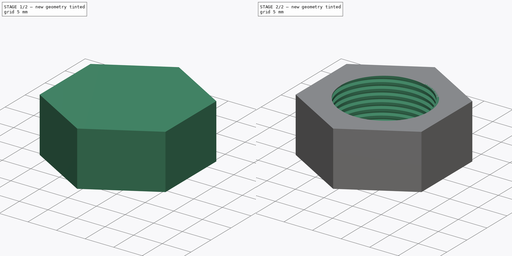
[diagram: build sequence overview — one tinted view per stage of 2, left to right]
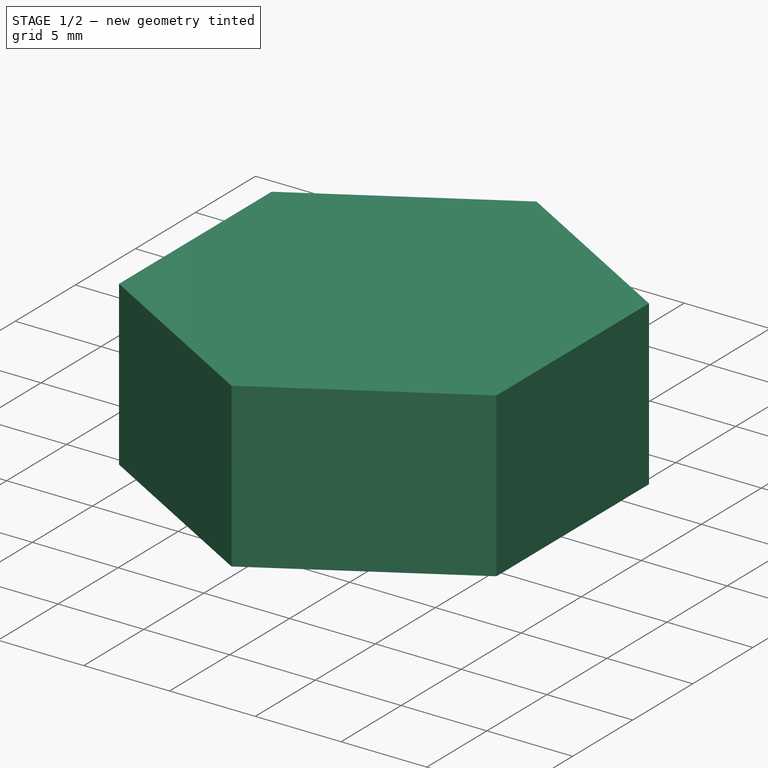
[diagram: stage 1 of 2 — iso view after this stage's code; geometry added in this stage tinted green]
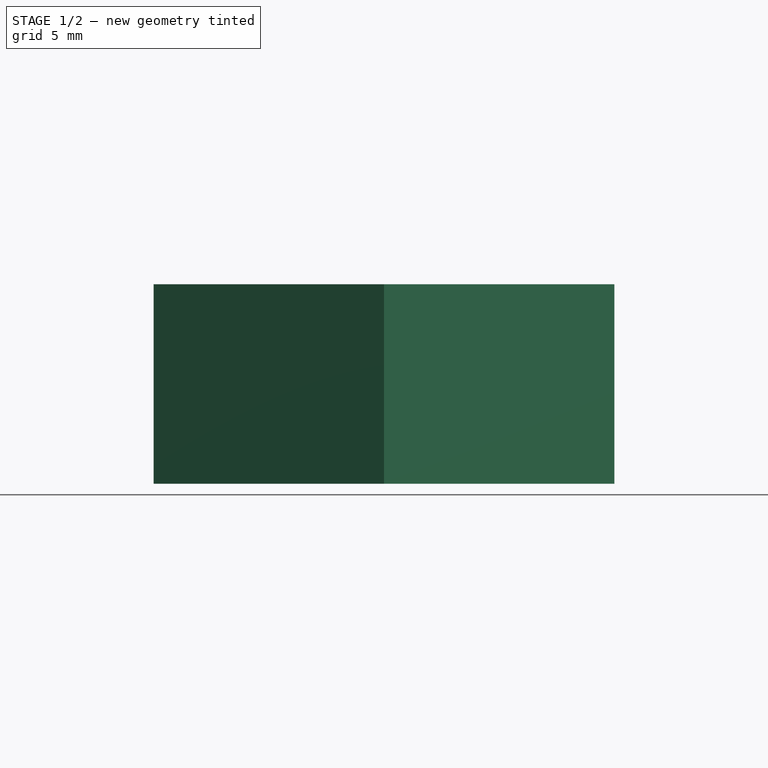
[diagram: stage 1 of 2 — front view after this stage's code; geometry added in this stage tinted green]
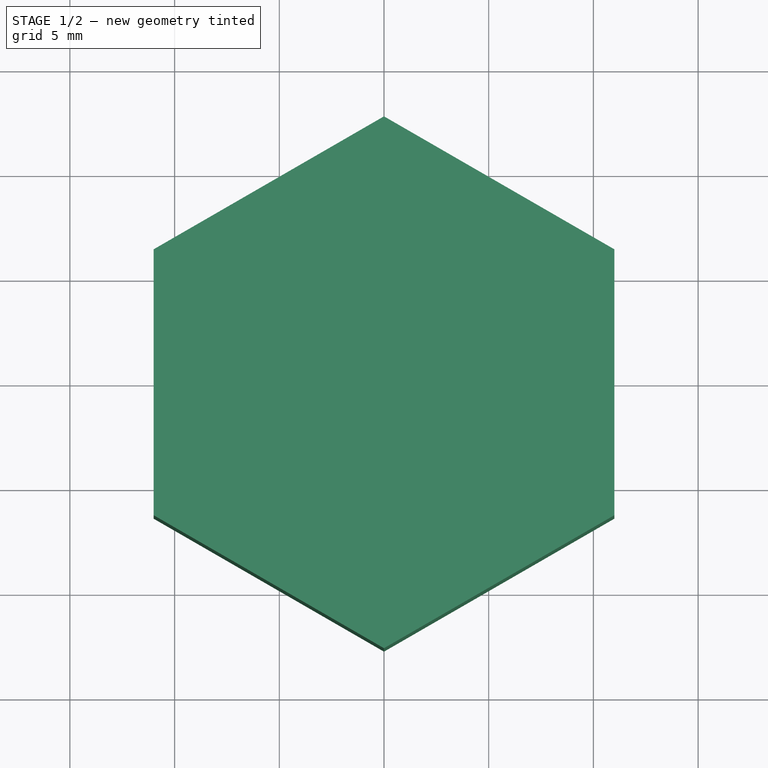
[diagram: stage 1 of 2 — top view after this stage's code; geometry added in this stage tinted green]
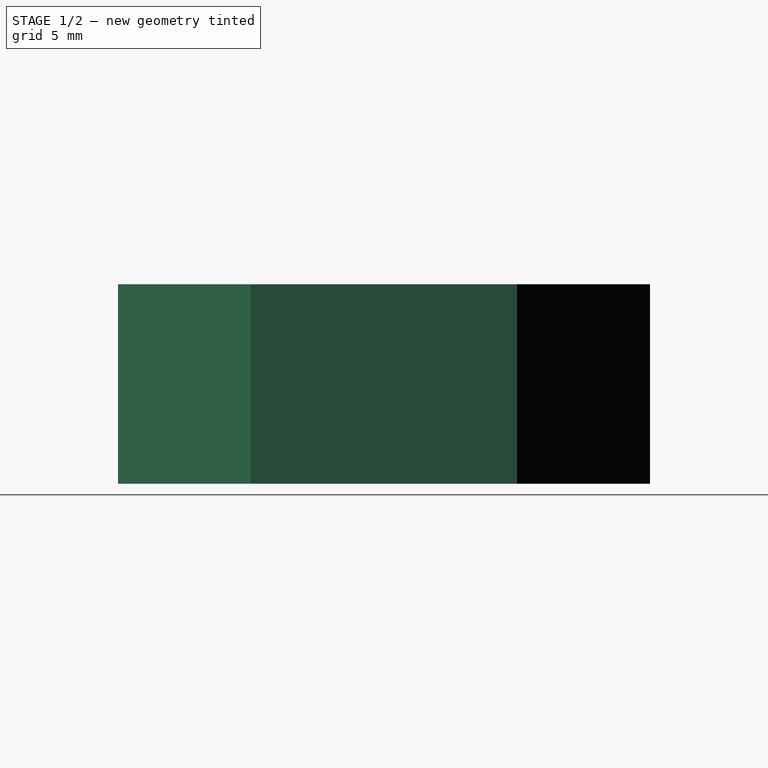
[diagram: stage 1 of 2 — right view after this stage's code; geometry added in this stage tinted green]
FCSTD DOCUMENT  (FreeCAD 1.1R40006 (Git))
Label: nut
License: All rights reserved
LicenseURL: https://en.wikipedia.org/wiki/All_rights_reserved
objects: App::Point×1, Sketcher::SketchObject×1, PartDesign::Pad×1, PartDesign::Hole×1, PartDesign::Body×1, Spreadsheet::Sheet×1
note: 9 computed .brp shape members not serialized (recipe doc carries the construction recipe); baked Part::Feature solids carry a one-line shape summary decoded from their .brp

FEATURE [App::Point] Origin001
  Role = Origin
FEATURE [Sketcher::SketchObject] Sketch  label="NutSketch"
  ArcFitTolerance = 1e-06
  AttachmentOffset = pos=(0,0,-7.9) rot=(0,0,1;0rad)
  AttachmentSupport = -> [XY_Plane]
  ExternalTypes = [0]
  FullyConstrained = true
  MakeInternals = false
  MapMode = 5
  Placement = pos=(0,0,-7.9) rot=(0,0,1;0rad)
  expr: Constraints[18] = <<Spreadsheet>>.HoleDia
  expr: Constraints[21] = <<Spreadsheet>>.HeadSize
  sketch-geometry (8):
    g0: LineSegment StartX=11 StartY=6.35085 StartZ=0 EndX=0 EndY=12.7017 EndZ=0
    g1: LineSegment StartX=5e-16 StartY=12.7017 StartZ=0 EndX=-11 EndY=6.35085 EndZ=0
    g2: LineSegment StartX=-11 StartY=6.35085 StartZ=0 EndX=-11 EndY=-6.35085 EndZ=0
    g3: LineSegment StartX=-11 StartY=-6.35085 StartZ=0 EndX=1.8e-15 EndY=-12.7017 EndZ=0
    g4: LineSegment StartX=1.6e-15 StartY=-12.7017 StartZ=0 EndX=11 EndY=-6.35085 EndZ=0
    g5: LineSegment StartX=11 StartY=-6.35085 StartZ=0 EndX=11 EndY=6.35085 EndZ=0
    g6: Circle [constr] CenterX=0 CenterY=0 CenterZ=0 NormalX=0 NormalY=0 NormalZ=1 AngleXU=0 Radius=12.7017
    g7: Circle CenterX=0 CenterY=0 CenterZ=0 NormalX=0 NormalY=0 NormalZ=1 AngleXU=0 Radius=10
  constraints (18):
    c: Coincident(g0,g1)
    c: Coincident(g1,g2)
    c: Coincident(g2,g3)
    c: Coincident(g3,g4)
    c: Coincident(g4,g5)
    c: Coincident(g5,g0)
    c: Equal(g0, g1-g5) x5
    c: PointOnObject(g0,g6)
    c: PointOnObject(g1,g6)
    c: PointOnObject(g2,g6)
    c: PointOnObject(g3,g6)
    c: PointOnObject(g4,g6)
    c: PointOnObject(g5,g6)
    c: Coincident(g6,g-1)
    c: Diameter(g7) = 20
    c: Coincident(g7,g6)
    c: Vertical(g2)
    c: DistanceX(g1,g0) = 22
FEATURE [PartDesign::Pad] Pad  label="NutPad"
  Direction = (0,0,1)
  Length = 9.525
  Length2 = 10
  Profile = -> Sketch [Edge4,Edge5,Edge6,Edge1,Edge2,Edge3]
  ReferenceAxis = -> Sketch [N_Axis]
  Refine = true
  Suppressed = false
  Type = 0
  expr: Length = Spreadsheet.NutThickness
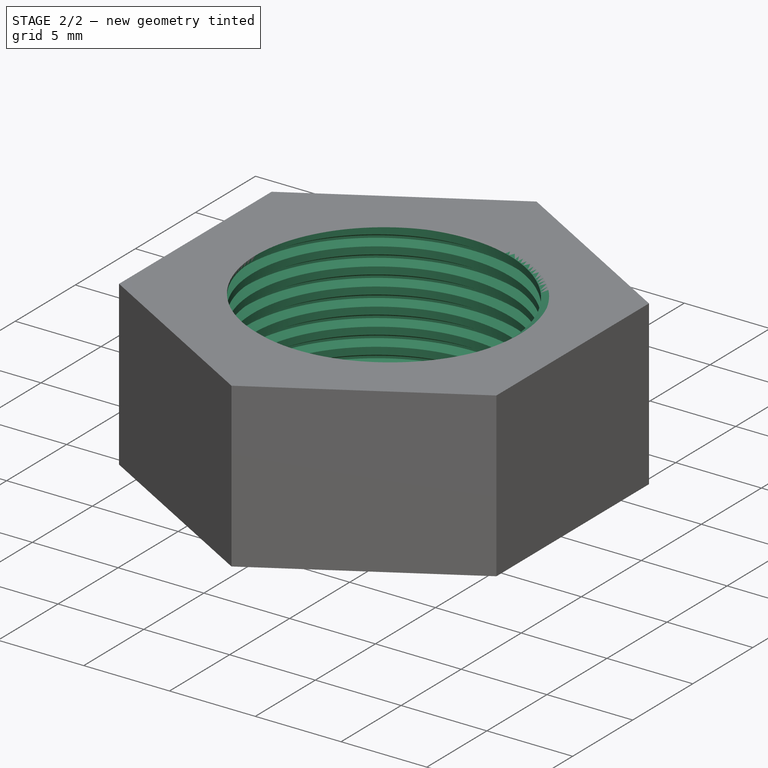
[diagram: stage 2 of 2 — iso view after this stage's code; geometry added in this stage tinted green]
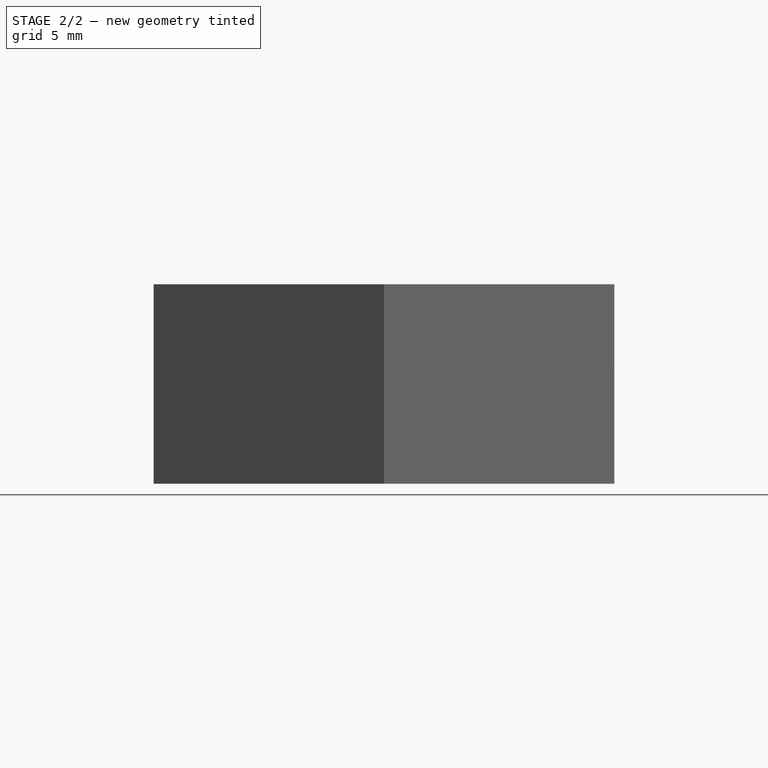
[diagram: stage 2 of 2 — front view after this stage's code; geometry added in this stage tinted green]
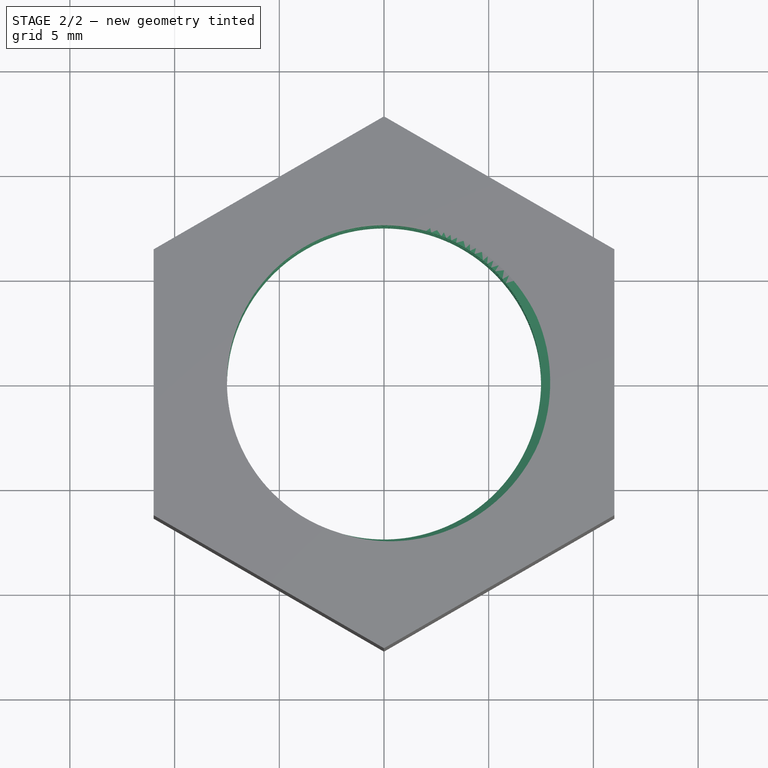
[diagram: stage 2 of 2 — top view after this stage's code; geometry added in this stage tinted green]
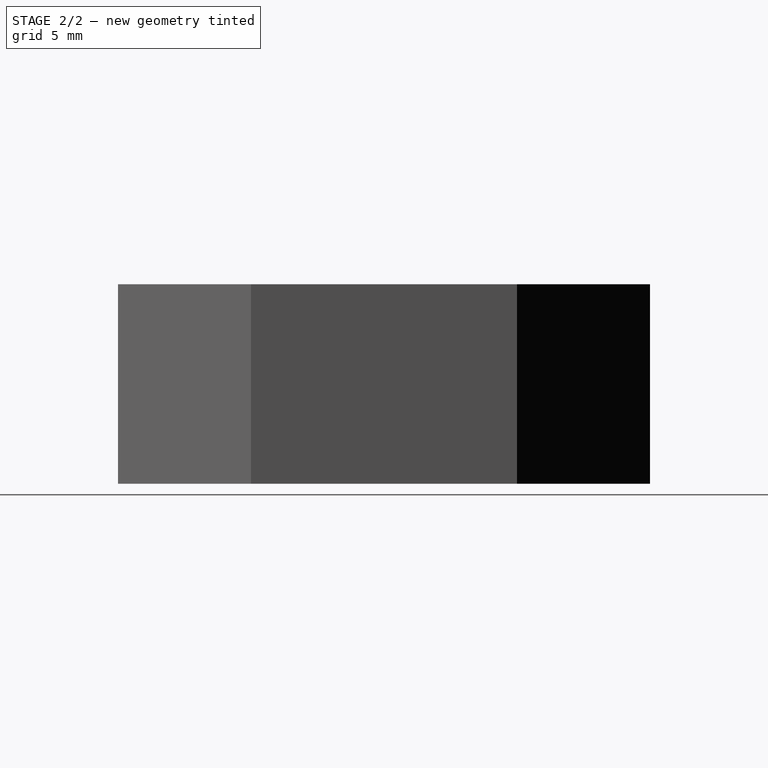
[diagram: stage 2 of 2 — right view after this stage's code; geometry added in this stage tinted green]
FEATURE [PartDesign::Hole] Hole  label="NutThreadedHole"
  BaseFeature = -> Pad
  CustomThreadClearance = 0
  Depth = 103.796
  DepthType = 1
  Diameter = 15
  DrillForDepth = false
  DrillPoint = 1
  DrillPointAngle = 118
  HoleCutCountersinkAngle = 90
  HoleCutCustomValues = false
  HoleCutDepth = 0
  HoleCutDiameter = 0
  HoleCutType = 0
  ModelThread = true
  Profile = -> Sketch [Edge7]
  Refine = true
  Reversed = true
  Suppressed = false
  Tapered = false
  TaperedAngle = 90
  ThreadClass = 0
  ThreadDepth = 70.5573
  ThreadDepthType = 0
  ThreadDirection = 0
  ThreadFit = 0
  ThreadSize = 7
  ThreadType = 5
  Threaded = true
  UseCustomThreadClearance = false
FEATURE [PartDesign::Body] Body  label="NutBody"
  AllowCompound = false
  Configuration = 1
  Group = -> [Sketch,Pad,Hole]
  Origin = -> Origin
  Tip = -> Hole
  expr: .Configuration.Enum = Spreadsheet.cells[<<A4:|>>]
  expr: .Placement.Base.z = 0
FEATURE [Spreadsheet::Sheet] Spreadsheet
  cells = A2='Style; B2='ThreadSize; C2='NutThickness; D2='HoleDia; E2='HeadSize; A3==hiddenref(Body.Configuration.String); B3(ThreadSize)==.B5; C3(NutThickness)==.C5; D3(HoleDia)==.D5; E3(HeadSize)==.E5; A4='Small; B4='1/2; C4==0.25 in; D4==18 mm; E4==19 mm; A5='Large; B5='5/8; C5==0.375 in; D5==20 mm; E5==22 mm
  expr: .cells.Bind.B3.F3 = tuple(.cells; <<B>> + str(hiddenref(Body.Configuration) + 4); <<F>> + str(hiddenref(Body.Configuration) + 4))
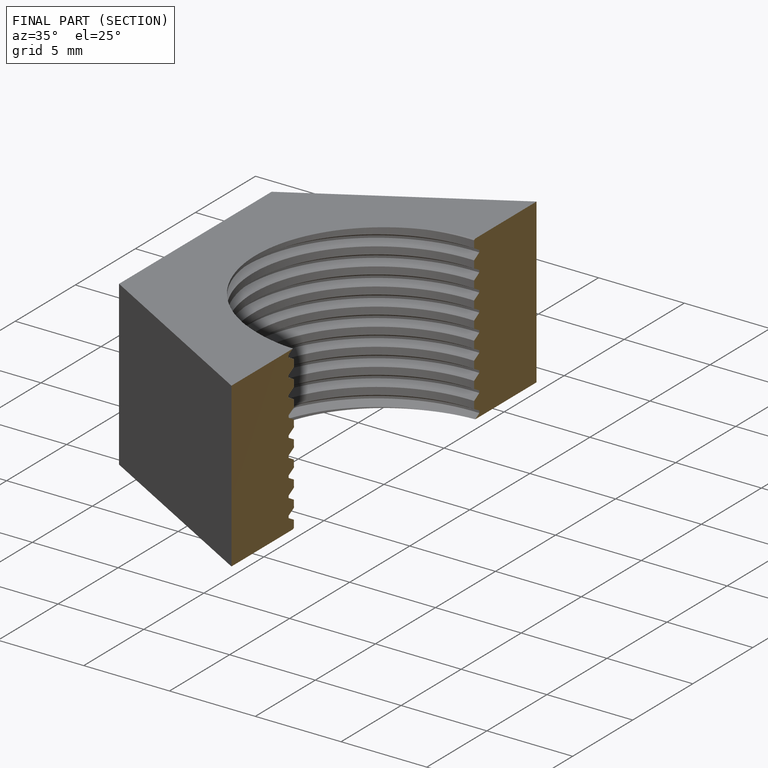
[diagram: finished part — half-section view (interior)]
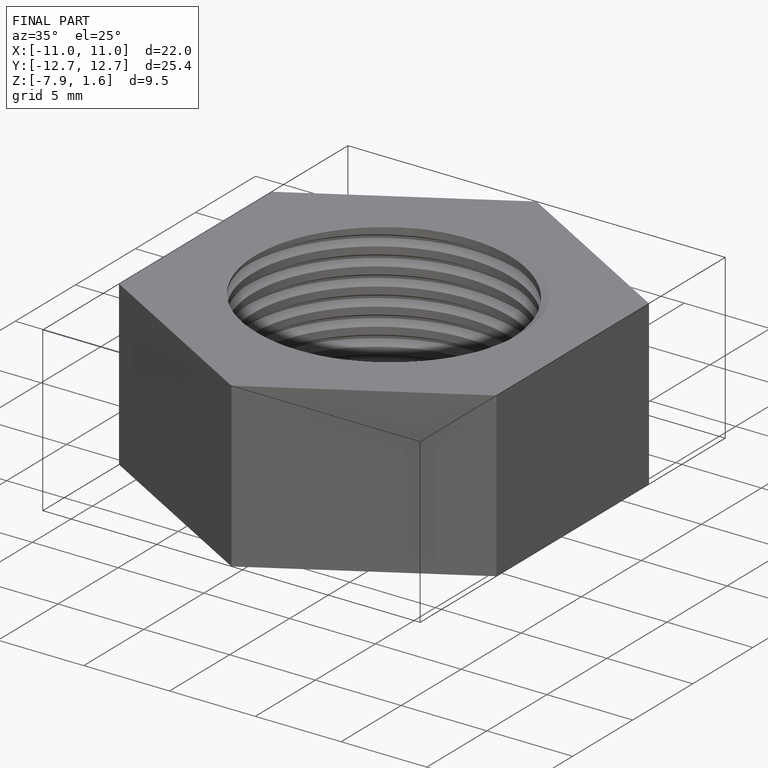
[diagram: finished part — iso view with bounding-box wireframe]
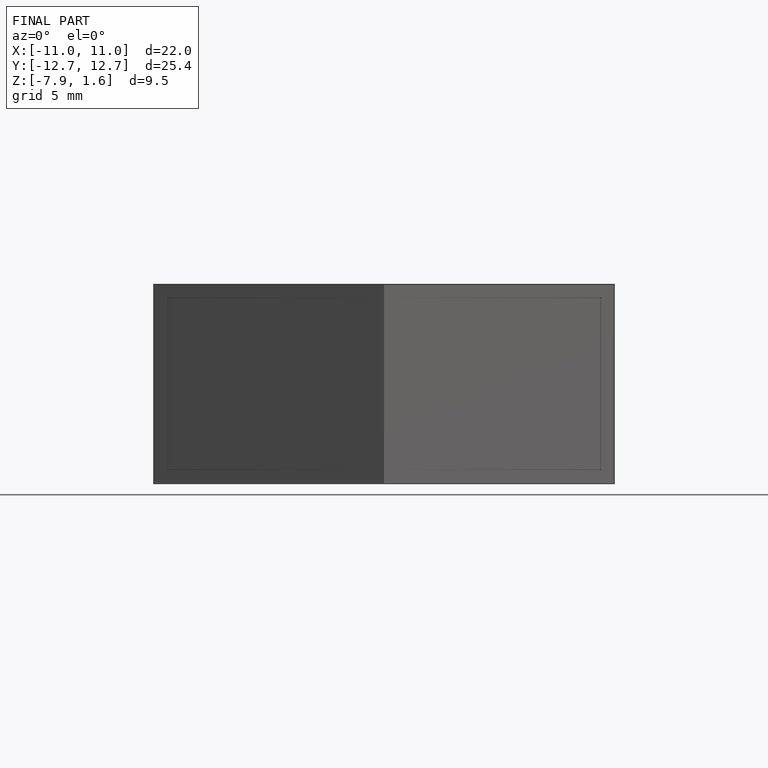
[diagram: finished part — front view with bounding-box wireframe]
